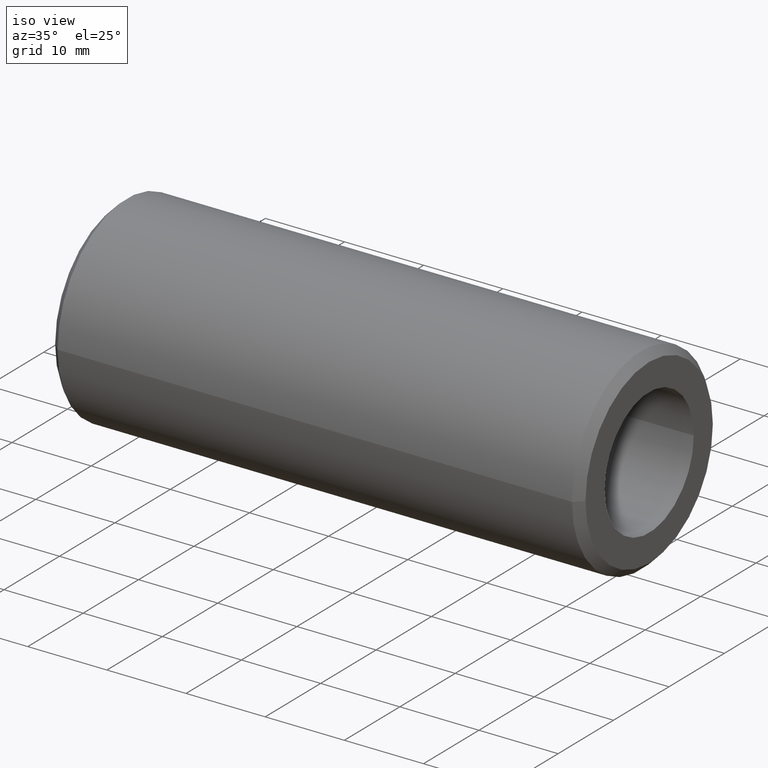
[diagram: clean part render]
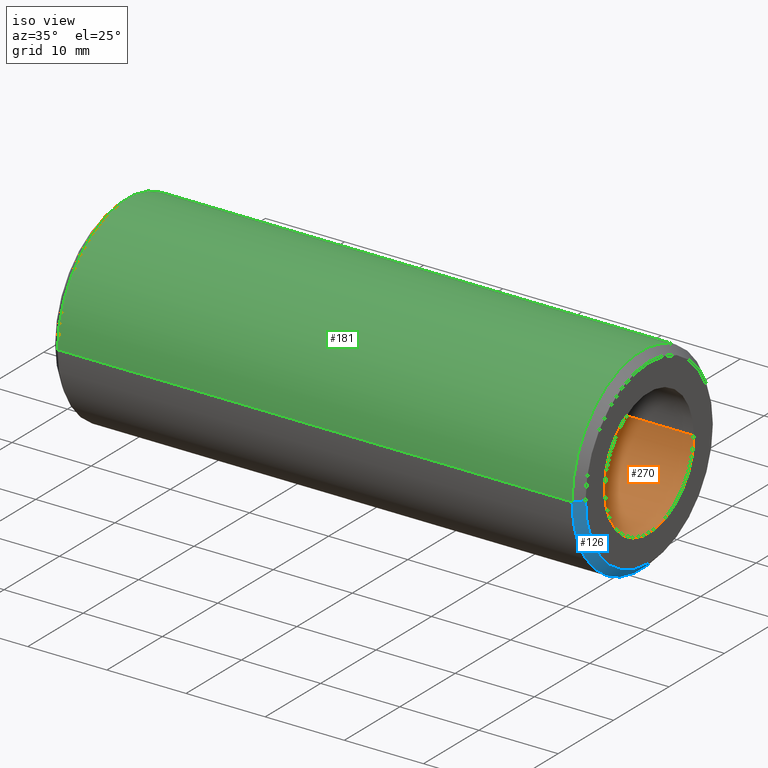
[diagram: same view with three faces highlighted in distinct colors, each labeled with its STEP entity id]
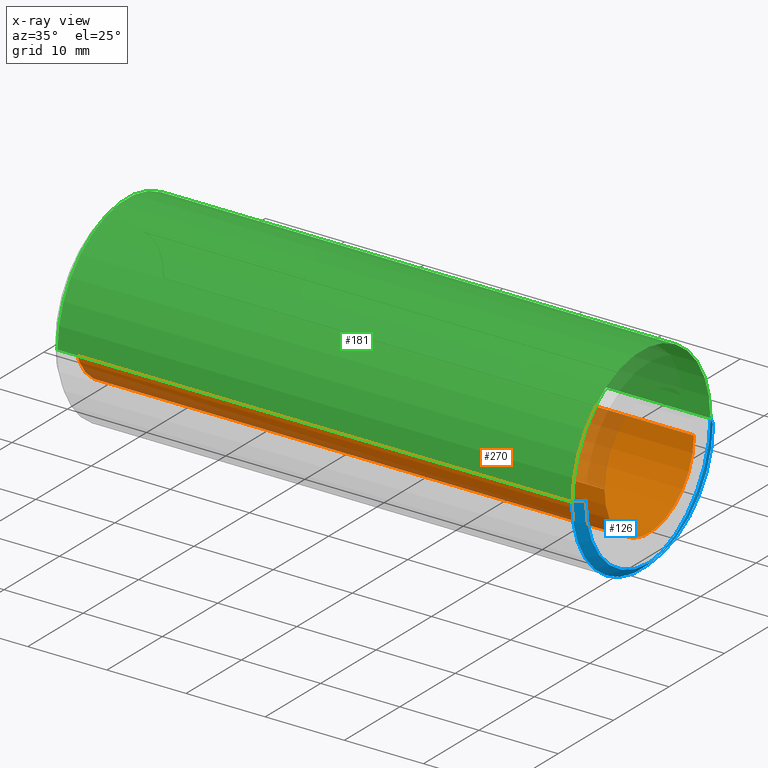
[diagram: x-ray of the same camera — body ghosted, the three highlighted faces saturated]
A machine part, iso view with three faces highlighted in distinct colors.
The next image is the same camera in x-ray (body ghosted, the three faces saturated) — at least one of them is partly hidden behind the body in this view.
Their STEP definitions:

[orange] entity #270 — the highlighted cylindrical surface (partial cylindrical patch) has radius 8.05 mm, axis along (1, 0, -0).
#2 = EDGE_CURVE ( 'NONE', #278, #172, #194, .T. ) ;
#4 = AXIS2_PLACEMENT_3D ( 'NONE', #25, #315, #213 ) ;
#7 = FACE_OUTER_BOUND ( 'NONE', #175, .T. ) ;
#12 = ORIENTED_EDGE ( 'NONE', *, *, #244, .T. ) ;
#23 = VECTOR ( 'NONE', #51, 1000.000000000000000 ) ;
#25 = CARTESIAN_POINT ( 'NONE',  ( 33.50000000000000000, 1.212400331155879387E-14, 0.000000000000000000 ) ) ;
#49 = DIRECTION ( 'NONE',  ( 1.000000000000000000, 3.061616997868382648E-16, -0.000000000000000000 ) ) ;
#51 = DIRECTION ( 'NONE',  ( 1.000000000000000000, 3.061616997868382648E-16, -0.000000000000000000 ) ) ;
#106 = DIRECTION ( 'NONE',  ( 0.000000000000000000, 1.000000000000000000, 0.000000000000000000 ) ) ;
#113 = EDGE_CURVE ( 'NONE', #328, #306, #241, .T. ) ;
#124 = LINE ( 'NONE', #178, #23 ) ;
#133 = CARTESIAN_POINT ( 'NONE',  ( 33.50000000000000000, 8.050000000000011369, 0.000000000000000000 ) ) ;
#141 = AXIS2_PLACEMENT_3D ( 'NONE', #203, #338, #312 ) ;
#152 = CARTESIAN_POINT ( 'NONE',  ( -33.50000000000000000, 8.049999999999991829, 0.000000000000000000 ) ) ;
#158 = DIRECTION ( 'NONE',  ( 1.000000000000000000, 3.061616997868382648E-16, -0.000000000000000000 ) ) ;
#160 = CARTESIAN_POINT ( 'NONE',  ( -33.50000000000000000, -8.050000000000007816, 9.858406733136206248E-16 ) ) ;
#162 = ORIENTED_EDGE ( 'NONE', *, *, #113, .T. ) ;
#172 = VERTEX_POINT ( 'NONE', #152 ) ;
#175 = EDGE_LOOP ( 'NONE', ( #250, #12, #162, #333 ) ) ;
#178 = CARTESIAN_POINT ( 'NONE',  ( -33.50000000000000000, 8.049999999999991829, 0.000000000000000000 ) ) ;
#188 = EDGE_CURVE ( 'NONE', #172, #306, #124, .T. ) ;
#192 = CARTESIAN_POINT ( 'NONE',  ( -33.50000000000000000, -8.388830574159368693E-15, 0.000000000000000000 ) ) ;
#194 = CIRCLE ( 'NONE', #141, 8.050000000000000711 ) ;
#203 = CARTESIAN_POINT ( 'NONE',  ( -33.50000000000000000, -8.388830574159368693E-15, 0.000000000000000000 ) ) ;
#204 = AXIS2_PLACEMENT_3D ( 'NONE', #192, #158, #106 ) ;
#213 = DIRECTION ( 'NONE',  ( 0.000000000000000000, 1.000000000000000000, 0.000000000000000000 ) ) ;
#216 = CARTESIAN_POINT ( 'NONE',  ( -33.50000000000000000, -8.050000000000007816, 9.858406733136194415E-16 ) ) ;
#241 = CIRCLE ( 'NONE', #4, 8.050000000000000711 ) ;
#244 = EDGE_CURVE ( 'NONE', #278, #328, #343, .T. ) ;
#250 = ORIENTED_EDGE ( 'NONE', *, *, #2, .F. ) ;
#270 = ADVANCED_FACE ( 'NONE', ( #7 ), #304, .F. ) ;
#272 = CARTESIAN_POINT ( 'NONE',  ( 33.50000000000000000, -8.049999999999988276, 9.858406733136194415E-16 ) ) ;
#278 = VERTEX_POINT ( 'NONE', #160 ) ;
#304 = CYLINDRICAL_SURFACE ( 'NONE', #204, 8.050000000000000711 ) ;
#306 = VERTEX_POINT ( 'NONE', #133 ) ;
#312 = DIRECTION ( 'NONE',  ( 0.000000000000000000, 1.000000000000000000, 0.000000000000000000 ) ) ;
#315 = DIRECTION ( 'NONE',  ( 1.000000000000000000, 3.061616997868382648E-16, 0.000000000000000000 ) ) ;
#316 = VECTOR ( 'NONE', #49, 1000.000000000000000 ) ;
#328 = VERTEX_POINT ( 'NONE', #272 ) ;
#333 = ORIENTED_EDGE ( 'NONE', *, *, #188, .F. ) ;
#338 = DIRECTION ( 'NONE',  ( 1.000000000000000000, 3.061616997868382648E-16, 0.000000000000000000 ) ) ;
#343 = LINE ( 'NONE', #216, #316 ) ;

[blue] entity #126 — the highlighted conical surface has half-angle 45 deg.
#48 = DIRECTION ( 'NONE',  ( 1.000000000000000000, 3.061616997868382648E-16, -0.000000000000000000 ) ) ;
#56 = CARTESIAN_POINT ( 'NONE',  ( 32.49999999999999289, 12.49000000000001087, 0.000000000000000000 ) ) ;
#58 = ORIENTED_EDGE ( 'NONE', *, *, #140, .F. ) ;
#63 = VERTEX_POINT ( 'NONE', #183 ) ;
#67 = CIRCLE ( 'NONE', #326, 12.49000000000000021 ) ;
#72 = CONICAL_SURFACE ( 'NONE', #125, 12.49000000000000021, 0.7853981633974526089 ) ;
#74 = DIRECTION ( 'NONE',  ( 5.555559570782408784E-16, -1.000000000000000000, 0.000000000000000000 ) ) ;
#75 = CARTESIAN_POINT ( 'NONE',  ( 32.50000000000000000, 1.181784161177195757E-14, 0.000000000000000000 ) ) ;
#77 = DIRECTION ( 'NONE',  ( -0.7071067811865445751, 0.7071067811865503483, 8.659560562354968603E-17 ) ) ;
#79 = DIRECTION ( 'NONE',  ( -0.7071067811865441310, -0.7071067811865507924, 0.000000000000000000 ) ) ;
#96 = AXIS2_PLACEMENT_3D ( 'NONE', #128, #48, #179 ) ;
#117 = ORIENTED_EDGE ( 'NONE', *, *, #153, .F. ) ;
#125 = AXIS2_PLACEMENT_3D ( 'NONE', #344, #267, #214 ) ;
#126 = ADVANCED_FACE ( 'NONE', ( #345 ), #72, .T. ) ;
#128 = CARTESIAN_POINT ( 'NONE',  ( 33.50000000000000000, 1.212400331155879702E-14, 0.000000000000000000 ) ) ;
#140 = EDGE_CURVE ( 'NONE', #201, #284, #211, .T. ) ;
#146 = ORIENTED_EDGE ( 'NONE', *, *, #341, .T. ) ;
#153 = EDGE_CURVE ( 'NONE', #332, #63, #67, .T. ) ;
#157 = CARTESIAN_POINT ( 'NONE',  ( 33.50000000000000711, -11.48999999999997712, 0.000000000000000000 ) ) ;
#169 = EDGE_LOOP ( 'NONE', ( #287, #58, #146, #117 ) ) ;
#179 = DIRECTION ( 'NONE',  ( 6.039072153095939786E-16, -1.000000000000000000, 0.000000000000000000 ) ) ;
#180 = VECTOR ( 'NONE', #79, 1000.000000000000114 ) ;
#183 = CARTESIAN_POINT ( 'NONE',  ( 32.50000000000000711, -12.48999999999998778, 1.529583852135044146E-15 ) ) ;
#201 = VERTEX_POINT ( 'NONE', #157 ) ;
#211 = CIRCLE ( 'NONE', #96, 11.48999999999998956 ) ;
#214 = DIRECTION ( 'NONE',  ( 5.555559570782408784E-16, -1.000000000000000000, 0.000000000000000000 ) ) ;
#218 = CARTESIAN_POINT ( 'NONE',  ( 32.50000000000000711, -12.48999999999998778, 0.000000000000000000 ) ) ;
#220 = EDGE_CURVE ( 'NONE', #284, #332, #294, .T. ) ;
#222 = VECTOR ( 'NONE', #77, 1000.000000000000114 ) ;
#240 = CARTESIAN_POINT ( 'NONE',  ( 32.49999999999999289, 12.49000000000001087, 1.529583852135044146E-15 ) ) ;
#267 = DIRECTION ( 'NONE',  ( -1.000000000000000000, -3.061616997868373280E-16, -0.000000000000000000 ) ) ;
#268 = DIRECTION ( 'NONE',  ( -1.000000000000000000, -3.061616997868373280E-16, -0.000000000000000000 ) ) ;
#284 = VERTEX_POINT ( 'NONE', #329 ) ;
#287 = ORIENTED_EDGE ( 'NONE', *, *, #220, .F. ) ;
#294 = LINE ( 'NONE', #240, #222 ) ;
#326 = AXIS2_PLACEMENT_3D ( 'NONE', #75, #268, #74 ) ;
#327 = LINE ( 'NONE', #218, #180 ) ;
#329 = CARTESIAN_POINT ( 'NONE',  ( 33.49999999999999289, 11.49000000000000199, 1.468351512177675783E-15 ) ) ;
#332 = VERTEX_POINT ( 'NONE', #56 ) ;
#341 = EDGE_CURVE ( 'NONE', #201, #63, #327, .T. ) ;
#344 = CARTESIAN_POINT ( 'NONE',  ( 32.50000000000000000, 1.181784161177195757E-14, 0.000000000000000000 ) ) ;
#345 = FACE_OUTER_BOUND ( 'NONE', #169, .T. ) ;

[green] entity #181 — the highlighted cylindrical surface (partial cylindrical patch) has radius 12.49 mm, axis along (1, 0, -0).
#6 = EDGE_CURVE ( 'NONE', #63, #332, #90, .T. ) ;
#15 = VERTEX_POINT ( 'NONE', #234 ) ;
#21 = EDGE_CURVE ( 'NONE', #314, #63, #205, .T. ) ;
#22 = DIRECTION ( 'NONE',  ( 1.000000000000000000, 3.061616997868382648E-16, -0.000000000000000000 ) ) ;
#27 = VECTOR ( 'NONE', #42, 1000.000000000000000 ) ;
#42 = DIRECTION ( 'NONE',  ( 1.000000000000000000, 3.061616997868382648E-16, -0.000000000000000000 ) ) ;
#45 = LINE ( 'NONE', #148, #296 ) ;
#53 = EDGE_CURVE ( 'NONE', #15, #332, #45, .T. ) ;
#56 = CARTESIAN_POINT ( 'NONE',  ( 32.49999999999999289, 12.49000000000001087, 0.000000000000000000 ) ) ;
#63 = VERTEX_POINT ( 'NONE', #183 ) ;
#65 = ORIENTED_EDGE ( 'NONE', *, *, #230, .T. ) ;
#76 = DIRECTION ( 'NONE',  ( -5.555559570782408784E-16, 1.000000000000000000, 0.000000000000000000 ) ) ;
#89 = CARTESIAN_POINT ( 'NONE',  ( -33.49999999999999289, -12.49000000000000732, 1.529583852135044146E-15 ) ) ;
#90 = CIRCLE ( 'NONE', #207, 12.49000000000000021 ) ;
#93 = DIRECTION ( 'NONE',  ( -1.000000000000000000, -3.061616997868373280E-16, -0.000000000000000000 ) ) ;
#98 = CARTESIAN_POINT ( 'NONE',  ( -33.50000000000000000, -8.388830574159368693E-15, 0.000000000000000000 ) ) ;
#105 = CIRCLE ( 'NONE', #112, 12.49000000000000021 ) ;
#112 = AXIS2_PLACEMENT_3D ( 'NONE', #262, #346, #237 ) ;
#143 = ORIENTED_EDGE ( 'NONE', *, *, #21, .T. ) ;
#148 = CARTESIAN_POINT ( 'NONE',  ( -33.50000000000000711, 12.48999999999999133, 0.000000000000000000 ) ) ;
#181 = ADVANCED_FACE ( 'NONE', ( #263 ), #184, .T. ) ;
#183 = CARTESIAN_POINT ( 'NONE',  ( 32.50000000000000711, -12.48999999999998778, 1.529583852135044146E-15 ) ) ;
#184 = CYLINDRICAL_SURFACE ( 'NONE', #342, 12.49000000000000021 ) ;
#205 = LINE ( 'NONE', #89, #27 ) ;
#207 = AXIS2_PLACEMENT_3D ( 'NONE', #255, #93, #289 ) ;
#230 = EDGE_CURVE ( 'NONE', #15, #314, #105, .T. ) ;
#234 = CARTESIAN_POINT ( 'NONE',  ( -32.50000000000002132, 12.48999999999999133, 0.000000000000000000 ) ) ;
#237 = DIRECTION ( 'NONE',  ( 5.555559570782408784E-16, -1.000000000000000000, 0.000000000000000000 ) ) ;
#255 = CARTESIAN_POINT ( 'NONE',  ( 32.50000000000000000, 1.181784161177195757E-14, 0.000000000000000000 ) ) ;
#257 = EDGE_LOOP ( 'NONE', ( #65, #143, #339, #281 ) ) ;
#262 = CARTESIAN_POINT ( 'NONE',  ( -32.50000000000001421, -8.082668874372535555E-15, 0.000000000000000000 ) ) ;
#263 = FACE_OUTER_BOUND ( 'NONE', #257, .T. ) ;
#274 = CARTESIAN_POINT ( 'NONE',  ( -32.50000000000000711, -12.49000000000000732, 1.529583852135045527E-15 ) ) ;
#281 = ORIENTED_EDGE ( 'NONE', *, *, #53, .F. ) ;
#289 = DIRECTION ( 'NONE',  ( 5.555559570782408784E-16, -1.000000000000000000, 0.000000000000000000 ) ) ;
#293 = DIRECTION ( 'NONE',  ( 1.000000000000000000, 3.061616997868382648E-16, -0.000000000000000000 ) ) ;
#296 = VECTOR ( 'NONE', #293, 1000.000000000000000 ) ;
#314 = VERTEX_POINT ( 'NONE', #274 ) ;
#332 = VERTEX_POINT ( 'NONE', #56 ) ;
#339 = ORIENTED_EDGE ( 'NONE', *, *, #6, .T. ) ;
#342 = AXIS2_PLACEMENT_3D ( 'NONE', #98, #22, #76 ) ;
#346 = DIRECTION ( 'NONE',  ( 1.000000000000000000, 3.061616997868385113E-16, 0.000000000000000000 ) ) ;